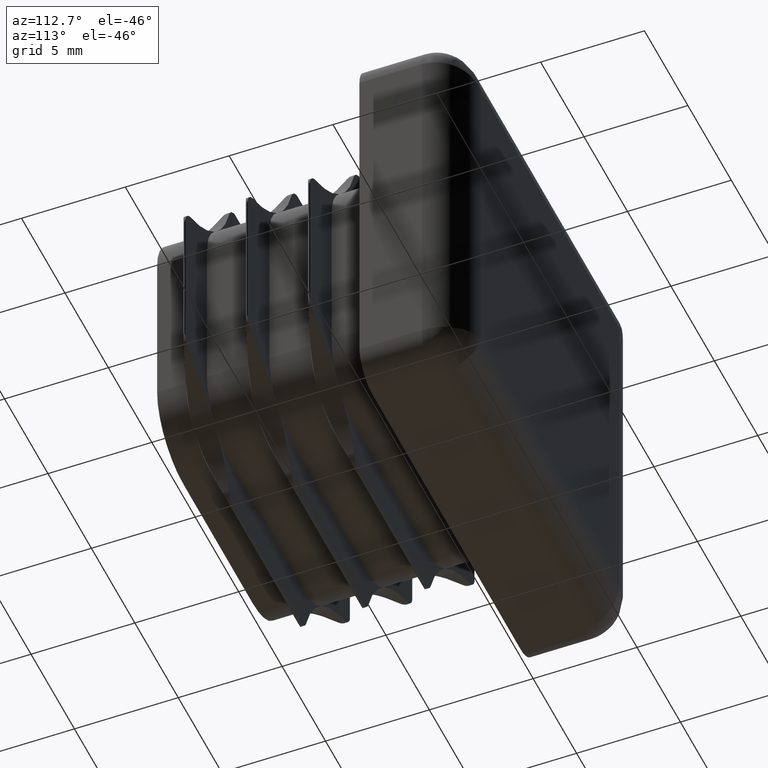
[diagram: clean part render]
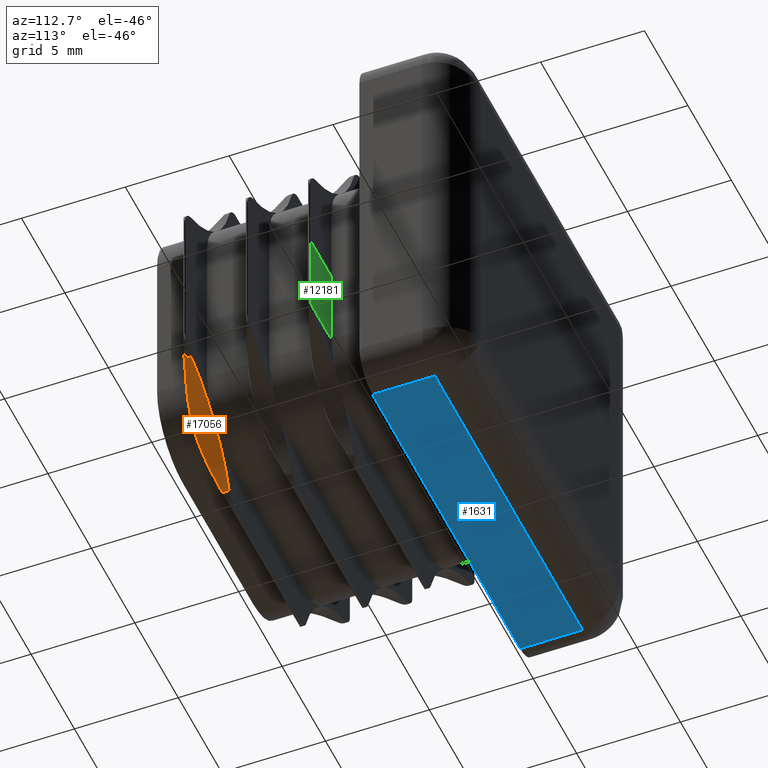
[diagram: same view with three faces highlighted in distinct colors, each labeled with its STEP entity id]
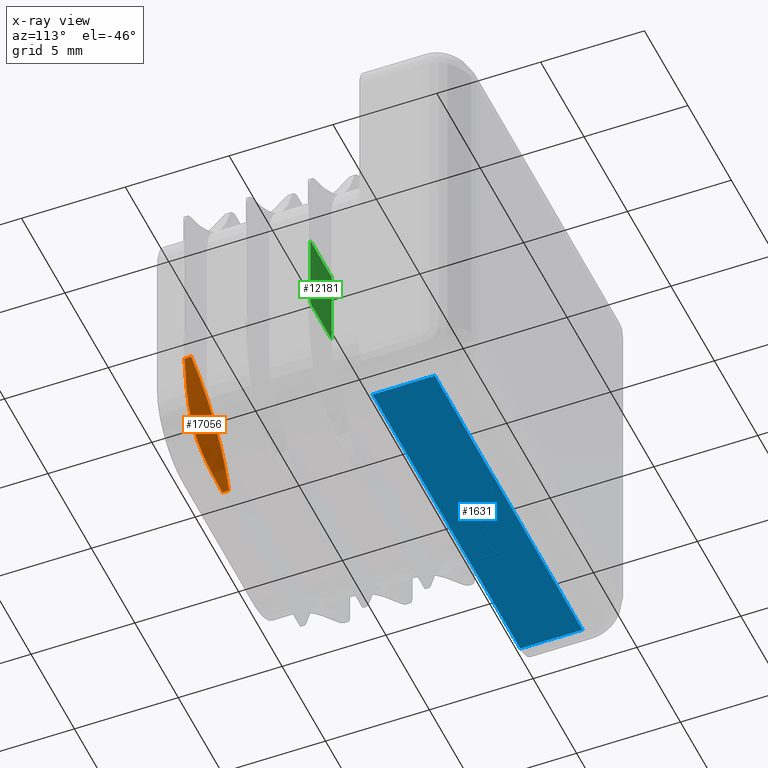
[diagram: x-ray of the same camera — body ghosted, the three highlighted faces saturated]
A machine part, auxiliary view with three faces highlighted in distinct colors.
The next image is the same camera in x-ray (body ghosted, the three faces saturated) — at least one of them is partly hidden behind the body in this view.
Their STEP definitions:

[orange] entity #17056 — the highlighted cylindrical surface (partial cylindrical patch) has radius 7 mm, axis along (-0, -1, -0).
#160 = EDGE_CURVE ( 'NONE', #6963, #8199, #17339, .T. ) ;
#580 = CIRCLE ( 'NONE', #12489, 6.999999999999999112 ) ;
#775 = LINE ( 'NONE', #15963, #20369 ) ;
#2198 = CARTESIAN_POINT ( 'NONE',  ( 8.325792497765508671, -9.100930741989476047, -4.610621669019861812 ) ) ;
#2352 = CARTESIAN_POINT ( 'NONE',  ( 6.121320343559607302, -9.600000000000017408, -6.121320343559641941 ) ) ;
#2467 = CARTESIAN_POINT ( 'NONE',  ( 6.121320343559647270, -8.599999999999999645, -6.121320343559681021 ) ) ;
#2844 = AXIS2_PLACEMENT_3D ( 'NONE', #3729, #16508, #10005 ) ;
#2871 = CARTESIAN_POINT ( 'NONE',  ( 4.442423878817267635, 8.491681050490834437, -8.821383476483271480 ) ) ;
#3404 = ORIENTED_EDGE ( 'NONE', *, *, #160, .F. ) ;
#3654 = CARTESIAN_POINT ( 'NONE',  ( 11.07106781186539735, 8.491681050490834437, -11.07106781186550926 ) ) ;
#3729 = CARTESIAN_POINT ( 'NONE',  ( 11.07106781186539735, -8.599999999999999645, -11.07106781186550926 ) ) ;
#3796 = DIRECTION ( 'NONE',  ( 0.000000000000000000, 0.000000000000000000, -1.000000000000000000 ) ) ;
#3934 = CARTESIAN_POINT ( 'NONE',  ( 6.121320343559607302, -9.600000000000017408, -6.121320343559641941 ) ) ;
#3954 = CARTESIAN_POINT ( 'NONE',  ( 6.519408464712600271, -9.579993506682898285, -5.745905243733258949 ) ) ;
#4060 = VERTEX_POINT ( 'NONE', #7286 ) ;
#4282 = ORIENTED_EDGE ( 'NONE', *, *, #16430, .F. ) ;
#5026 = LINE ( 'NONE', #2871, #8214 ) ;
#5336 = CARTESIAN_POINT ( 'NONE',  ( 5.927656959038019480, -9.600000000000020961, -6.314983728081219994 ) ) ;
#5544 = DIRECTION ( 'NONE',  ( -0.000000000000000000, -1.000000000000000000, -0.000000000000000000 ) ) ;
#5709 = EDGE_LOOP ( 'NONE', ( #9484, #15538, #18296, #8265, #3404, #4282 ) ) ;
#6300 = CARTESIAN_POINT ( 'NONE',  ( 4.442423878817267635, -8.599999999999999645, -8.821383476483271480 ) ) ;
#6963 = VERTEX_POINT ( 'NONE', #2352 ) ;
#6999 = CARTESIAN_POINT ( 'NONE',  ( 6.314162391842883082, -9.600000000000024514, -5.928478295276364385 ) ) ;
#7068 = CARTESIAN_POINT ( 'NONE',  ( 6.121320343559607302, -9.600000000000017408, -6.121320343559641941 ) ) ;
#7286 = CARTESIAN_POINT ( 'NONE',  ( 8.821383476483250163, -8.599999999999999645, -4.442423878817345795 ) ) ;
#8199 = VERTEX_POINT ( 'NONE', #10510 ) ;
#8214 = VECTOR ( 'NONE', #16971, 1000.000000000000000 ) ;
#8265 = ORIENTED_EDGE ( 'NONE', *, *, #11466, .T. ) ;
#8681 = CARTESIAN_POINT ( 'NONE',  ( 4.442423878817267635, -8.925917737636781979, -8.821383476483271480 ) ) ;
#8851 = CARTESIAN_POINT ( 'NONE',  ( 4.442423878817267635, -8.925917737636781979, -8.821383476483271480 ) ) ;
#9470 = VERTEX_POINT ( 'NONE', #6300 ) ;
#9484 = ORIENTED_EDGE ( 'NONE', *, *, #19353, .F. ) ;
#9514 = CYLINDRICAL_SURFACE ( 'NONE', #13260, 6.999999999999999112 ) ;
#10005 = DIRECTION ( 'NONE',  ( 0.000000000000000000, 0.000000000000000000, -1.000000000000000000 ) ) ;
#10083 = CARTESIAN_POINT ( 'NONE',  ( 7.847343410461618873, -9.264750765852253878, -4.834916461457532399 ) ) ;
#10094 = VERTEX_POINT ( 'NONE', #8851 ) ;
#10229 = CARTESIAN_POINT ( 'NONE',  ( 6.949236706462077251, -9.505707908590938615, -5.406664266205126523 ) ) ;
#10510 = CARTESIAN_POINT ( 'NONE',  ( 8.821383476483250163, -8.925917737636787308, -4.442423878817345795 ) ) ;
#11466 = EDGE_CURVE ( 'NONE', #4060, #8199, #775, .T. ) ;
#11599 = CARTESIAN_POINT ( 'NONE',  ( 5.745531885353549306, -9.580002896200571882, -6.519760111651111245 ) ) ;
#11746 = CARTESIAN_POINT ( 'NONE',  ( 5.404659111604990684, -9.505177043886563482, -6.951899555018931309 ) ) ;
#12416 = DIRECTION ( 'NONE',  ( -0.000000000000000000, -1.000000000000000000, -0.000000000000000000 ) ) ;
#12489 = AXIS2_PLACEMENT_3D ( 'NONE', #17117, #12416, #18733 ) ;
#13260 = AXIS2_PLACEMENT_3D ( 'NONE', #3654, #14900, #3796 ) ;
#13505 = EDGE_CURVE ( 'NONE', #18146, #9470, #18591, .T. ) ;
#14453 = FACE_OUTER_BOUND ( 'NONE', #5709, .T. ) ;
#14768 = CARTESIAN_POINT ( 'NONE',  ( 4.832470983947252385, -9.263234164846348762, -7.852042368346084267 ) ) ;
#14900 = DIRECTION ( 'NONE',  ( -0.000000000000000000, -1.000000000000000000, -0.000000000000000000 ) ) ;
#15529 = B_SPLINE_CURVE_WITH_KNOTS ( 'NONE', 3,
 ( #8681, #16370, #14768, #16446, #11746, #11599, #5336, #3934 ),
 .UNSPECIFIED., .F., .F.,
 ( 4, 2, 2, 4 ),
 ( 2.193296499209152801E-07, 0.001634971459249370774, 0.002452347524049093303, 0.003269723588848816049 ),
 .UNSPECIFIED. ) ;
#15538 = ORIENTED_EDGE ( 'NONE', *, *, #13505, .F. ) ;
#15963 = CARTESIAN_POINT ( 'NONE',  ( 8.821383476483250163, 8.491681050490834437, -4.442423878817345795 ) ) ;
#16370 = CARTESIAN_POINT ( 'NONE',  ( 4.611062613353774431, -9.101389552967615870, -8.324493265273963161 ) ) ;
#16430 = EDGE_CURVE ( 'NONE', #10094, #6963, #15529, .T. ) ;
#16446 = CARTESIAN_POINT ( 'NONE',  ( 5.250404806876890262, -9.451760730813399292, -7.173576826732625200 ) ) ;
#16508 = DIRECTION ( 'NONE',  ( -0.000000000000000000, -1.000000000000000000, -0.000000000000000000 ) ) ;
#16663 = CARTESIAN_POINT ( 'NONE',  ( 7.169459828230925424, -9.452797768405243772, -5.253168636700122462 ) ) ;
#16971 = DIRECTION ( 'NONE',  ( -0.000000000000000000, -1.000000000000000000, -0.000000000000000000 ) ) ;
#17056 = ADVANCED_FACE ( 'NONE', ( #14453 ), #9514, .F. ) ;
#17117 = CARTESIAN_POINT ( 'NONE',  ( 11.07106781186539735, -8.599999999999999645, -11.07106781186550926 ) ) ;
#17339 = B_SPLINE_CURVE_WITH_KNOTS ( 'NONE', 3,
 ( #7068, #6999, #3954, #10229, #16663, #10083, #2198, #18137 ),
 .UNSPECIFIED., .F., .F.,
 ( 4, 2, 2, 4 ),
 ( 0.003269723588848816049, 0.004083633120292204724, 0.004897542651735592098, 0.006525361714622372050 ),
 .UNSPECIFIED. ) ;
#18137 = CARTESIAN_POINT ( 'NONE',  ( 8.821383476483250163, -8.925917737636787308, -4.442423878817345795 ) ) ;
#18146 = VERTEX_POINT ( 'NONE', #2467 ) ;
#18296 = ORIENTED_EDGE ( 'NONE', *, *, #18568, .F. ) ;
#18568 = EDGE_CURVE ( 'NONE', #4060, #18146, #580, .T. ) ;
#18591 = CIRCLE ( 'NONE', #2844, 6.999999999999999112 ) ;
#18733 = DIRECTION ( 'NONE',  ( 0.000000000000000000, 0.000000000000000000, -1.000000000000000000 ) ) ;
#19353 = EDGE_CURVE ( 'NONE', #9470, #10094, #5026, .T. ) ;
#20369 = VECTOR ( 'NONE', #5544, 1000.000000000000000 ) ;

[blue] entity #1631 — the highlighted planar face has unit normal (0, -0, 1).
#289 = DIRECTION ( 'NONE',  ( 1.000000000000000000, 0.000000000000000000, -6.938893903907224433E-16 ) ) ;
#1631 = ADVANCED_FACE ( 'NONE', ( #2285 ), #14718, .F. ) ;
#1640 = VECTOR ( 'NONE', #17952, 1000.000000000000000 ) ;
#1923 = ORIENTED_EDGE ( 'NONE', *, *, #16538, .T. ) ;
#2285 = FACE_OUTER_BOUND ( 'NONE', #16447, .T. ) ;
#3658 = VERTEX_POINT ( 'NONE', #6484 ) ;
#4328 = VERTEX_POINT ( 'NONE', #17581 ) ;
#6223 = DIRECTION ( 'NONE',  ( -0.000000000000000000, 1.000000000000000000, 0.000000000000000000 ) ) ;
#6384 = LINE ( 'NONE', #16342, #1640 ) ;
#6484 = CARTESIAN_POINT ( 'NONE',  ( -8.499999999999996447, 3.000000000000000000, -9.999999999999989342 ) ) ;
#6780 = LINE ( 'NONE', #11865, #14666 ) ;
#7415 = CARTESIAN_POINT ( 'NONE',  ( 8.500000000000014211, 0.000000000000000000, -10.00000000000000000 ) ) ;
#8342 = VERTEX_POINT ( 'NONE', #7415 ) ;
#8891 = ORIENTED_EDGE ( 'NONE', *, *, #8969, .T. ) ;
#8969 = EDGE_CURVE ( 'NONE', #9125, #3658, #14898, .T. ) ;
#9125 = VERTEX_POINT ( 'NONE', #12834 ) ;
#9950 = CARTESIAN_POINT ( 'NONE',  ( -9.999999999999994671, 5.000000000000000000, -9.999999999999987566 ) ) ;
#11513 = VECTOR ( 'NONE', #12023, 1000.000000000000000 ) ;
#11865 = CARTESIAN_POINT ( 'NONE',  ( 8.500000000000014211, 3.000000000000000000, -10.00000000000000000 ) ) ;
#11955 = CARTESIAN_POINT ( 'NONE',  ( 8.500000000000014211, 5.000000000000000000, -10.00000000000000000 ) ) ;
#12023 = DIRECTION ( 'NONE',  ( 0.000000000000000000, -1.000000000000000000, 0.000000000000000000 ) ) ;
#12834 = CARTESIAN_POINT ( 'NONE',  ( -8.499999999999996447, 0.000000000000000000, -9.999999999999989342 ) ) ;
#13033 = AXIS2_PLACEMENT_3D ( 'NONE', #9950, #19325, #289 ) ;
#13913 = EDGE_CURVE ( 'NONE', #8342, #9125, #6384, .T. ) ;
#14118 = ORIENTED_EDGE ( 'NONE', *, *, #18506, .T. ) ;
#14171 = VECTOR ( 'NONE', #6223, 1000.000000000000000 ) ;
#14666 = VECTOR ( 'NONE', #15087, 1000.000000000000000 ) ;
#14718 = PLANE ( 'NONE',  #13033 ) ;
#14898 = LINE ( 'NONE', #15865, #14171 ) ;
#15087 = DIRECTION ( 'NONE',  ( 1.000000000000000000, -0.000000000000000000, -6.938893903907224433E-16 ) ) ;
#15865 = CARTESIAN_POINT ( 'NONE',  ( -8.499999999999996447, 5.000000000000000000, -9.999999999999989342 ) ) ;
#15969 = LINE ( 'NONE', #11955, #11513 ) ;
#16342 = CARTESIAN_POINT ( 'NONE',  ( -9.999999999999994671, 0.000000000000000000, -9.999999999999987566 ) ) ;
#16447 = EDGE_LOOP ( 'NONE', ( #8891, #14118, #1923, #20367 ) ) ;
#16538 = EDGE_CURVE ( 'NONE', #4328, #8342, #15969, .T. ) ;
#17581 = CARTESIAN_POINT ( 'NONE',  ( 8.500000000000014211, 3.000000000000000000, -10.00000000000000000 ) ) ;
#17952 = DIRECTION ( 'NONE',  ( -1.000000000000000000, -0.000000000000000000, 6.938893903907224433E-16 ) ) ;
#18506 = EDGE_CURVE ( 'NONE', #3658, #4328, #6780, .T. ) ;
#19325 = DIRECTION ( 'NONE',  ( 6.938893903907224433E-16, -0.000000000000000000, 1.000000000000000000 ) ) ;
#20367 = ORIENTED_EDGE ( 'NONE', *, *, #13913, .T. ) ;

[green] entity #12181 — the highlighted planar face has unit normal (0, -1, 0).
#30 = VERTEX_POINT ( 'NONE', #8376 ) ;
#425 = CARTESIAN_POINT ( 'NONE',  ( 9.450000000000020606, -2.600000000000000089, -3.807724645444868550 ) ) ;
#1260 = PLANE ( 'NONE',  #10075 ) ;
#1536 = VERTEX_POINT ( 'NONE', #425 ) ;
#1789 = DIRECTION ( 'NONE',  ( -2.168404344971014538E-16, 0.000000000000000000, -1.000000000000000000 ) ) ;
#3245 = CARTESIAN_POINT ( 'NONE',  ( 6.999999999999978684, -2.600000000000000089, 0.000000000000000000 ) ) ;
#3814 = DIRECTION ( 'NONE',  ( 1.040834085586083310E-14, 0.000000000000000000, -1.000000000000000000 ) ) ;
#4428 = EDGE_CURVE ( 'NONE', #10055, #30, #5814, .T. ) ;
#4642 = LINE ( 'NONE', #5259, #16228 ) ;
#4804 = DIRECTION ( 'NONE',  ( -1.000000000000000000, 0.000000000000000000, 0.000000000000000000 ) ) ;
#5259 = CARTESIAN_POINT ( 'NONE',  ( 6.999999999999978684, -2.600000000000000089, 0.000000000000000000 ) ) ;
#5401 = CARTESIAN_POINT ( 'NONE',  ( 8.500000000000083489, -2.600000000000000089, -3.495474745524751459 ) ) ;
#5814 = LINE ( 'NONE', #17557, #18433 ) ;
#6697 = DIRECTION ( 'NONE',  ( -1.000000000000000000, 0.000000000000000000, 0.000000000000000000 ) ) ;
#6964 = FACE_OUTER_BOUND ( 'NONE', #11575, .T. ) ;
#8376 = CARTESIAN_POINT ( 'NONE',  ( 6.999999999999978684, -2.600000000000000089, -3.999999999999982681 ) ) ;
#8993 = DIRECTION ( 'NONE',  ( -2.168404344971014538E-16, 0.000000000000000000, -1.000000000000000000 ) ) ;
#9121 = CARTESIAN_POINT ( 'NONE',  ( 6.999999999999978684, -2.600000000000000089, 0.000000000000000000 ) ) ;
#9196 = VECTOR ( 'NONE', #8993, 1000.000000000000000 ) ;
#9638 = ORIENTED_EDGE ( 'NONE', *, *, #14866, .F. ) ;
#9915 = LINE ( 'NONE', #9121, #9196 ) ;
#10055 = VERTEX_POINT ( 'NONE', #15274 ) ;
#10075 = AXIS2_PLACEMENT_3D ( 'NONE', #11226, #14319, #15846 ) ;
#10551 = LINE ( 'NONE', #10581, #20239 ) ;
#10581 = CARTESIAN_POINT ( 'NONE',  ( 9.450000000000020606, -2.600000000000000089, 0.000000000000000000 ) ) ;
#11226 = CARTESIAN_POINT ( 'NONE',  ( 6.999999999999978684, -2.600000000000000089, 0.000000000000000000 ) ) ;
#11295 = EDGE_CURVE ( 'NONE', #18380, #30, #9915, .T. ) ;
#11462 = EDGE_CURVE ( 'NONE', #1536, #10055, #18126, .T. ) ;
#11575 = EDGE_LOOP ( 'NONE', ( #17530, #19081, #20521, #16346, #9638 ) ) ;
#11681 = DIRECTION ( 'NONE',  ( 0.000000000000000000, 1.000000000000000000, -0.000000000000000000 ) ) ;
#12181 = ADVANCED_FACE ( 'NONE', ( #6964 ), #1260, .F. ) ;
#12747 = AXIS2_PLACEMENT_3D ( 'NONE', #5401, #11681, #3814 ) ;
#14319 = DIRECTION ( 'NONE',  ( 0.000000000000000000, -1.000000000000000000, 0.000000000000000000 ) ) ;
#14866 = EDGE_CURVE ( 'NONE', #16736, #18380, #4642, .T. ) ;
#15274 = CARTESIAN_POINT ( 'NONE',  ( 9.363396935132881183, -2.600000000000000089, -3.999999999999982681 ) ) ;
#15721 = EDGE_CURVE ( 'NONE', #16736, #1536, #10551, .T. ) ;
#15846 = DIRECTION ( 'NONE',  ( 0.000000000000000000, -0.000000000000000000, -1.000000000000000000 ) ) ;
#16228 = VECTOR ( 'NONE', #6697, 1000.000000000000000 ) ;
#16346 = ORIENTED_EDGE ( 'NONE', *, *, #11295, .F. ) ;
#16736 = VERTEX_POINT ( 'NONE', #19991 ) ;
#17530 = ORIENTED_EDGE ( 'NONE', *, *, #15721, .T. ) ;
#17557 = CARTESIAN_POINT ( 'NONE',  ( 6.999999999999977796, -2.600000000000000089, -3.999999999999982681 ) ) ;
#18126 = CIRCLE ( 'NONE', #12747, 1.000000000000000888 ) ;
#18380 = VERTEX_POINT ( 'NONE', #3245 ) ;
#18433 = VECTOR ( 'NONE', #4804, 1000.000000000000000 ) ;
#19081 = ORIENTED_EDGE ( 'NONE', *, *, #11462, .T. ) ;
#19991 = CARTESIAN_POINT ( 'NONE',  ( 9.450000000000020606, -2.600000000000000089, 0.000000000000000000 ) ) ;
#20239 = VECTOR ( 'NONE', #1789, 1000.000000000000000 ) ;
#20521 = ORIENTED_EDGE ( 'NONE', *, *, #4428, .T. ) ;